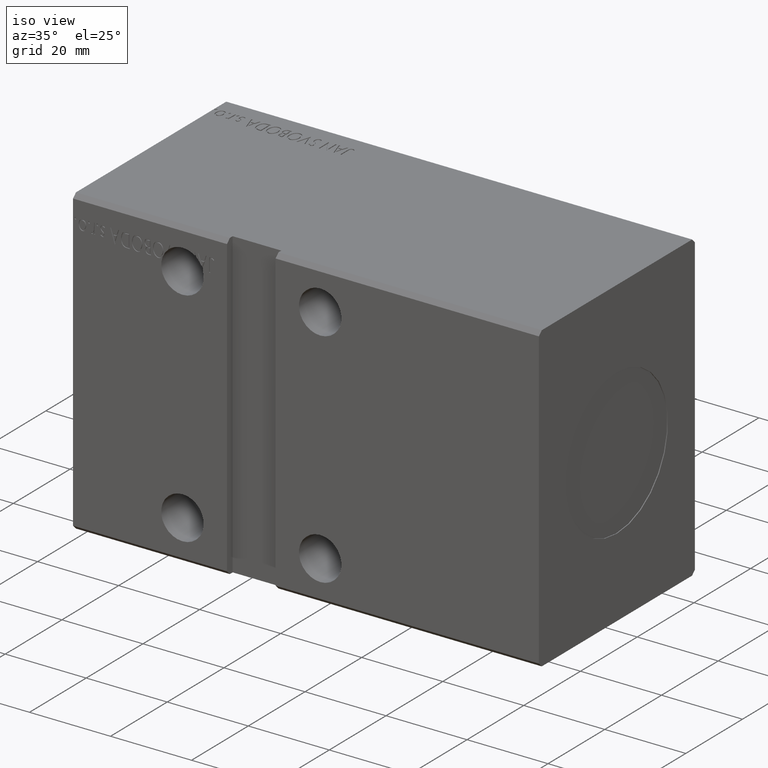
[diagram: clean part render]
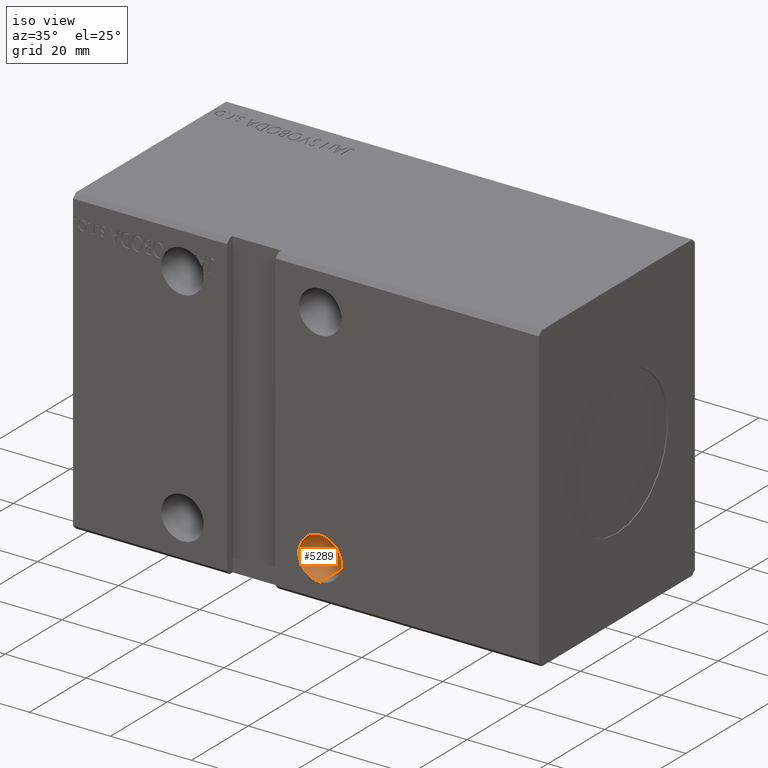
[diagram: same view with one face highlighted and labeled with its STEP entity id]
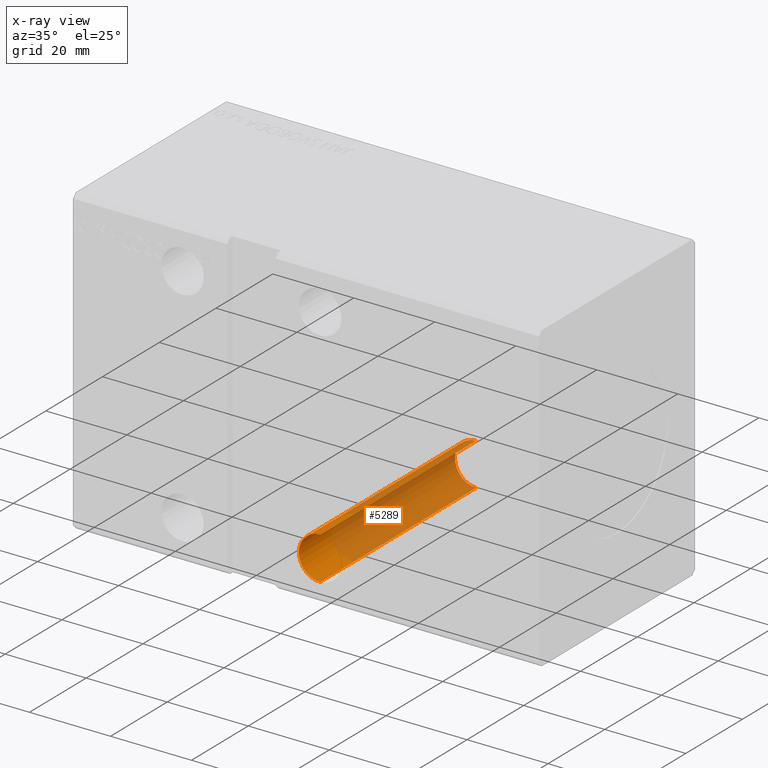
[diagram: x-ray of the same camera — body ghosted, the highlighted face saturated]
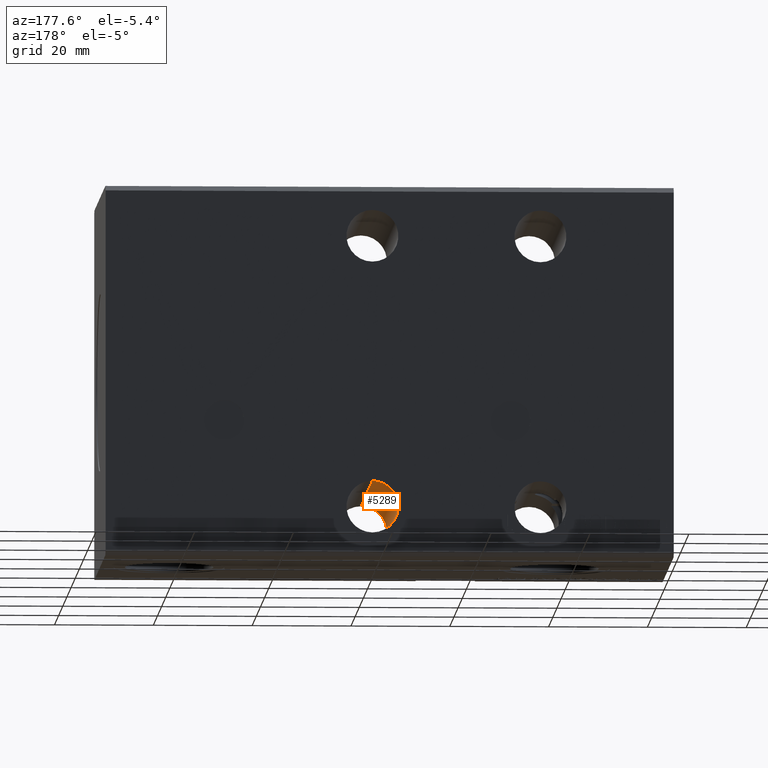
[diagram: same view with one face highlighted and labeled with its STEP entity id]
A machine part, iso view. The second image highlights one B-rep face of the part: STEP entity #5289.
The next image is the same camera in x-ray: the body ghosted, the highlighted face saturated — about 78% of this face is hidden behind the body in this view.
A second angle (auxiliary view) of the same face is appended — the face is thin or edge-on in the first view.
In plain terms, the highlighted cylindrical surface (edge-blend (fillet) strip) has radius 5.25 mm, axis along (-0, -1, -0).
Its self-contained STEP definition (entity closure, byte-faithful):
#474 = DIRECTION ( 'NONE',  ( 0.000000000000000000, 0.000000000000000000, 1.000000000000000000 ) ) ;
#602 = AXIS2_PLACEMENT_3D ( 'NONE', #2264, #14423, #26590 ) ;
#737 = CARTESIAN_POINT ( 'NONE',  ( 61.00000000000000711, 27.50000000000003197, -22.25000000000000355 ) ) ;
#1110 = CARTESIAN_POINT ( 'NONE',  ( 61.00000000000000711, 27.50000000000003197, -32.74999999999999289 ) ) ;
#1167 = ORIENTED_EDGE ( 'NONE', *, *, #37059, .F. ) ;
#2264 = CARTESIAN_POINT ( 'NONE',  ( 61.00000000000000711, 27.50000000000003197, -27.50000000000000000 ) ) ;
#2444 = CARTESIAN_POINT ( 'NONE',  ( 61.00000000000000711, -27.50000000000000355, -22.25000000000000711 ) ) ;
#3386 = VERTEX_POINT ( 'NONE', #737 ) ;
#3954 = DIRECTION ( 'NONE',  ( -0.000000000000000000, -1.000000000000000000, -5.507058653894626469E-17 ) ) ;
#5289 = ADVANCED_FACE ( 'NONE', ( #34456 ), #37829, .F. ) ;
#6727 = DIRECTION ( 'NONE',  ( 0.000000000000000000, 0.000000000000000000, -1.000000000000000000 ) ) ;
#7173 = LINE ( 'NONE', #21933, #21470 ) ;
#7244 = VERTEX_POINT ( 'NONE', #2444 ) ;
#7544 = VERTEX_POINT ( 'NONE', #1110 ) ;
#9496 = CARTESIAN_POINT ( 'NONE',  ( 61.00000000000000711, 27.50000000000003197, -22.25000000000000355 ) ) ;
#10058 = CARTESIAN_POINT ( 'NONE',  ( 61.00000000000000711, -27.50000000000000355, -27.50000000000000355 ) ) ;
#13514 = ORIENTED_EDGE ( 'NONE', *, *, #30811, .F. ) ;
#14423 = DIRECTION ( 'NONE',  ( 0.000000000000000000, -1.000000000000000000, -5.507058653894625853E-17 ) ) ;
#16683 = EDGE_CURVE ( 'NONE', #29954, #7244, #33120, .T. ) ;
#19147 = VECTOR ( 'NONE', #30636, 1000.000000000000000 ) ;
#20475 = EDGE_CURVE ( 'NONE', #3386, #7244, #36619, .T. ) ;
#21470 = VECTOR ( 'NONE', #27916, 1000.000000000000000 ) ;
#21933 = CARTESIAN_POINT ( 'NONE',  ( 61.00000000000000711, 27.50000000000003197, -32.74999999999999289 ) ) ;
#25563 = ORIENTED_EDGE ( 'NONE', *, *, #20475, .T. ) ;
#25599 = CARTESIAN_POINT ( 'NONE',  ( 61.00000000000000711, -27.50000000000000355, -32.75000000000000000 ) ) ;
#26590 = DIRECTION ( 'NONE',  ( 0.000000000000000000, 0.000000000000000000, -1.000000000000000000 ) ) ;
#27916 = DIRECTION ( 'NONE',  ( -0.000000000000000000, -1.000000000000000000, -5.507058653894626469E-17 ) ) ;
#28863 = CARTESIAN_POINT ( 'NONE',  ( 61.00000000000000711, 27.50000000000003197, -27.50000000000000000 ) ) ;
#29376 = ORIENTED_EDGE ( 'NONE', *, *, #16683, .F. ) ;
#29954 = VERTEX_POINT ( 'NONE', #25599 ) ;
#30636 = DIRECTION ( 'NONE',  ( -0.000000000000000000, -1.000000000000000000, -5.507058653894626469E-17 ) ) ;
#30811 = EDGE_CURVE ( 'NONE', #3386, #7544, #32459, .T. ) ;
#31638 = EDGE_LOOP ( 'NONE', ( #13514, #25563, #29376, #1167 ) ) ;
#32452 = AXIS2_PLACEMENT_3D ( 'NONE', #10058, #33987, #474 ) ;
#32459 = CIRCLE ( 'NONE', #602, 5.249999999999994671 ) ;
#33120 = CIRCLE ( 'NONE', #32452, 5.249999999999997335 ) ;
#33987 = DIRECTION ( 'NONE',  ( -0.000000000000000000, 1.000000000000000000, 4.752667057470705491E-17 ) ) ;
#34205 = AXIS2_PLACEMENT_3D ( 'NONE', #28863, #3954, #6727 ) ;
#34456 = FACE_OUTER_BOUND ( 'NONE', #31638, .T. ) ;
#36619 = LINE ( 'NONE', #9496, #19147 ) ;
#37059 = EDGE_CURVE ( 'NONE', #7544, #29954, #7173, .T. ) ;
#37829 = CYLINDRICAL_SURFACE ( 'NONE', #34205, 5.249999999999994671 ) ;